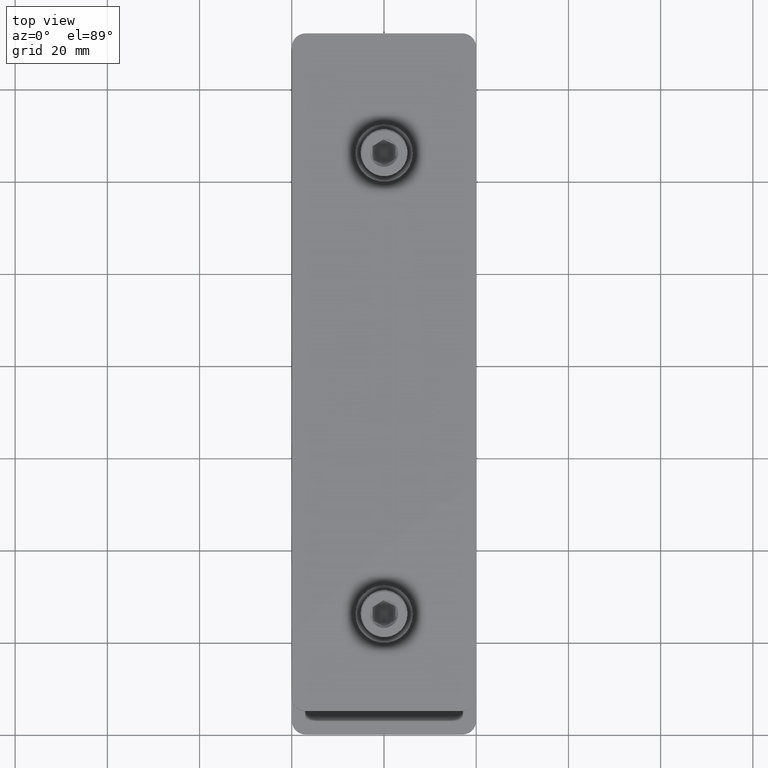
[diagram: clean part render]
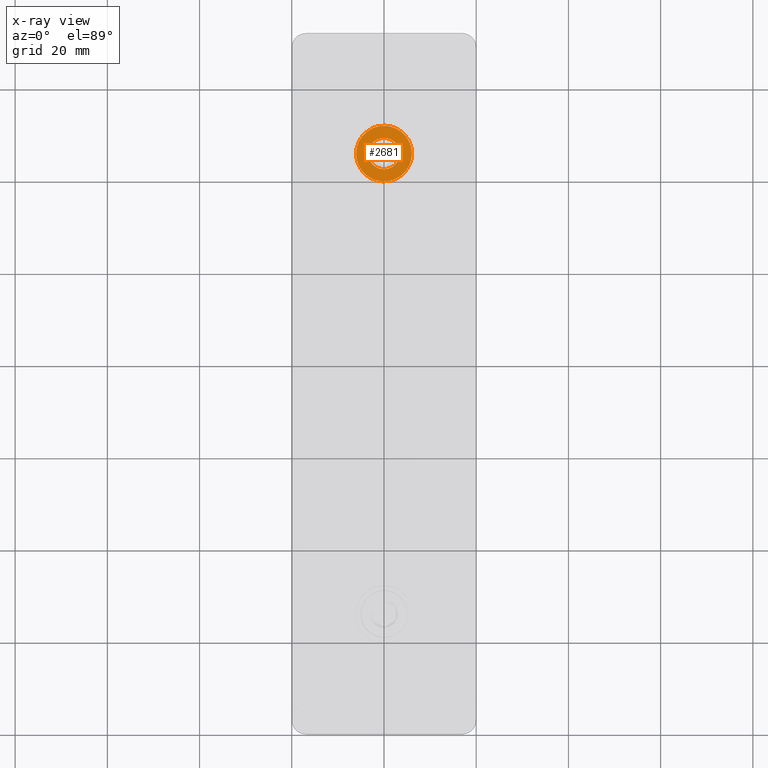
[diagram: x-ray — body ghosted, one internal face saturated and labeled with its STEP entity id]
A machine part, top view, then the same camera in x-ray: the body is ghosted and one INTERNAL B-rep face — a face not visible from any outside direction — is saturated and labeled: STEP entity #2681.
In plain terms, the highlighted planar face has unit normal (0, 0, 1).
Its self-contained STEP definition (entity closure, byte-faithful):
#17 = CARTESIAN_POINT ( 'NONE',  ( -23.40000000000001279, 126.0000000000000000, -2.000000000000000000 ) ) ;
#126 =( BOUNDED_CURVE ( )  B_SPLINE_CURVE ( 3, ( #726, #1906, #3584, #1267 ),
 .UNSPECIFIED., .F., .T. ) 
 B_SPLINE_CURVE_WITH_KNOTS ( ( 4, 4 ),
 ( 0.000000000000000000, 1.000000000000000000 ),
 .UNSPECIFIED. ) 
 CURVE ( )  GEOMETRIC_REPRESENTATION_ITEM ( )  RATIONAL_B_SPLINE_CURVE ( ( 1.000000000000000000, 0.3333333333333333703, 0.3333333333333333703, 1.000000000000000000 ) ) 
 REPRESENTATION_ITEM ( '' )  );
#131 = DIRECTION ( 'NONE',  ( 1.000000000000000000, 0.000000000000000000, -0.000000000000000000 ) ) ;
#141 = CARTESIAN_POINT ( 'NONE',  ( -26.05000000000001137, 126.0000000000000000, -2.000000000000000444 ) ) ;
#159 = CARTESIAN_POINT ( 'NONE',  ( -13.95000000000001350, 138.0999999999999943, -2.000000000000000444 ) ) ;
#186 = CARTESIAN_POINT ( 'NONE',  ( -26.05000000000001137, 126.0000000000000000, -2.000000000000000444 ) ) ;
#462 = ORIENTED_EDGE ( 'NONE', *, *, #1374, .F. ) ;
#638 = ORIENTED_EDGE ( 'NONE', *, *, #2072, .F. ) ;
#726 = CARTESIAN_POINT ( 'NONE',  ( -16.60000000000001208, 126.0000000000000000, -2.000000000000000000 ) ) ;
#753 = CARTESIAN_POINT ( 'NONE',  ( -13.95000000000001172, 126.0000000000000000, -2.000000000000000444 ) ) ;
#902 = VERTEX_POINT ( 'NONE', #17 ) ;
#933 =( BOUNDED_CURVE ( )  B_SPLINE_CURVE ( 3, ( #1932, #1054, #1997, #1382 ),
 .UNSPECIFIED., .F., .T. ) 
 B_SPLINE_CURVE_WITH_KNOTS ( ( 4, 4 ),
 ( 0.000000000000000000, 1.000000000000000000 ),
 .UNSPECIFIED. ) 
 CURVE ( )  GEOMETRIC_REPRESENTATION_ITEM ( )  RATIONAL_B_SPLINE_CURVE ( ( 1.000000000000000000, 0.3333333333333333703, 0.3333333333333333703, 1.000000000000000000 ) ) 
 REPRESENTATION_ITEM ( '' )  );
#1054 = CARTESIAN_POINT ( 'NONE',  ( -23.40000000000001279, 119.2000000000000171, -2.000000000000000444 ) ) ;
#1076 = CARTESIAN_POINT ( 'NONE',  ( -26.05000000000001137, 126.0000000000000000, -2.000000000000000444 ) ) ;
#1081 = EDGE_CURVE ( 'NONE', #902, #1564, #933, .T. ) ;
#1264 = CARTESIAN_POINT ( 'NONE',  ( -20.00000000000001066, 126.0000000000000000, -2.000000000000000444 ) ) ;
#1267 = CARTESIAN_POINT ( 'NONE',  ( -23.40000000000001279, 126.0000000000000000, -2.000000000000000000 ) ) ;
#1374 = EDGE_CURVE ( 'NONE', #1564, #902, #126, .T. ) ;
#1382 = CARTESIAN_POINT ( 'NONE',  ( -16.60000000000001208, 126.0000000000000000, -2.000000000000000000 ) ) ;
#1564 = VERTEX_POINT ( 'NONE', #3286 ) ;
#1648 = CARTESIAN_POINT ( 'NONE',  ( -13.95000000000001350, 113.9000000000000199, -2.000000000000000444 ) ) ;
#1746 = VERTEX_POINT ( 'NONE', #1076 ) ;
#1875 =( BOUNDED_CURVE ( )  B_SPLINE_CURVE ( 3, ( #141, #3396, #159, #753 ),
 .UNSPECIFIED., .F., .T. ) 
 B_SPLINE_CURVE_WITH_KNOTS ( ( 4, 4 ),
 ( 0.000000000000000000, 1.000000000000000000 ),
 .UNSPECIFIED. ) 
 CURVE ( )  GEOMETRIC_REPRESENTATION_ITEM ( )  RATIONAL_B_SPLINE_CURVE ( ( 1.000000000000000000, 0.3333333333333333703, 0.3333333333333333703, 1.000000000000000000 ) ) 
 REPRESENTATION_ITEM ( '' )  );
#1906 = CARTESIAN_POINT ( 'NONE',  ( -16.60000000000001208, 132.8000000000000114, -2.000000000000000444 ) ) ;
#1932 = CARTESIAN_POINT ( 'NONE',  ( -23.40000000000001279, 126.0000000000000000, -2.000000000000000000 ) ) ;
#1997 = CARTESIAN_POINT ( 'NONE',  ( -16.60000000000001208, 119.2000000000000171, -2.000000000000000444 ) ) ;
#2072 = EDGE_CURVE ( 'NONE', #1746, #2577, #1875, .T. ) ;
#2074 = ORIENTED_EDGE ( 'NONE', *, *, #1081, .F. ) ;
#2079 = EDGE_LOOP ( 'NONE', ( #2074, #462 ) ) ;
#2204 = DIRECTION ( 'NONE',  ( 0.000000000000000000, 0.000000000000000000, 1.000000000000000000 ) ) ;
#2577 = VERTEX_POINT ( 'NONE', #2646 ) ;
#2646 = CARTESIAN_POINT ( 'NONE',  ( -13.95000000000001172, 126.0000000000000000, -2.000000000000000444 ) ) ;
#2681 = ADVANCED_FACE ( 'NONE', ( #3405, #2728 ), #2766, .T. ) ;
#2728 = FACE_BOUND ( 'NONE', #2079, .T. ) ;
#2766 = PLANE ( 'NONE',  #3393 ) ;
#2819 = CARTESIAN_POINT ( 'NONE',  ( -26.05000000000001492, 113.9000000000000199, -2.000000000000000444 ) ) ;
#2932 = EDGE_CURVE ( 'NONE', #2577, #1746, #3277, .T. ) ;
#3277 =( BOUNDED_CURVE ( )  B_SPLINE_CURVE ( 3, ( #3779, #1648, #2819, #186 ),
 .UNSPECIFIED., .F., .T. ) 
 B_SPLINE_CURVE_WITH_KNOTS ( ( 4, 4 ),
 ( 0.000000000000000000, 1.000000000000000000 ),
 .UNSPECIFIED. ) 
 CURVE ( )  GEOMETRIC_REPRESENTATION_ITEM ( )  RATIONAL_B_SPLINE_CURVE ( ( 1.000000000000000000, 0.3333333333333333703, 0.3333333333333333703, 1.000000000000000000 ) ) 
 REPRESENTATION_ITEM ( '' )  );
#3286 = CARTESIAN_POINT ( 'NONE',  ( -16.60000000000001208, 126.0000000000000000, -2.000000000000000000 ) ) ;
#3299 = ORIENTED_EDGE ( 'NONE', *, *, #2932, .F. ) ;
#3393 = AXIS2_PLACEMENT_3D ( 'NONE', #1264, #2204, #131 ) ;
#3396 = CARTESIAN_POINT ( 'NONE',  ( -26.05000000000001492, 138.0999999999999943, -2.000000000000000444 ) ) ;
#3405 = FACE_OUTER_BOUND ( 'NONE', #3804, .T. ) ;
#3584 = CARTESIAN_POINT ( 'NONE',  ( -23.40000000000001279, 132.8000000000000114, -2.000000000000000444 ) ) ;
#3779 = CARTESIAN_POINT ( 'NONE',  ( -13.95000000000001172, 126.0000000000000000, -2.000000000000000444 ) ) ;
#3804 = EDGE_LOOP ( 'NONE', ( #638, #3299 ) ) ;